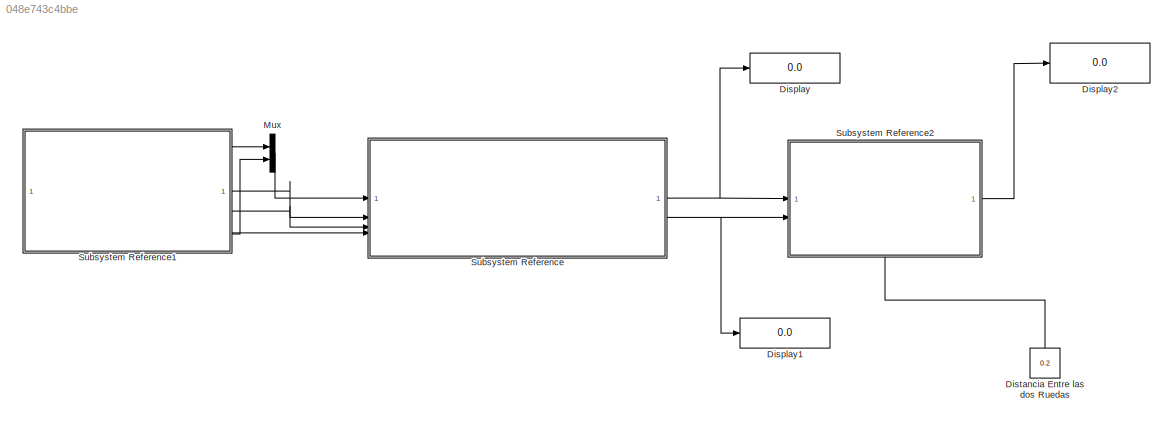
MODEL slx_048e743c4bbe
KIND model
CONFIG AbsTol = auto
CONFIG EnableMultiTasking = on
CONFIG FixedStep = 0.01
CONFIG MaxStep = auto
CONFIG MinStep = auto
CONFIG RelTol = 1e-3
CONFIG SampleTimeConstraint = Unconstrained
CONFIG SolverName = FixedStepDiscrete
CONFIG StartTime = 0.0
CONFIG StopTime = inf
BLOCK [Display] Display
  Decimation = 1
BLOCK [Display] Display1
  Decimation = 1
BLOCK [Display] Display2
  Decimation = 1
BLOCK [Constant] Distancia Entre las dos Ruedas
  NameLocation = right
  Value = 0.2
BLOCK [Mux] Mux
  DisplayOption = bar
  Inputs = 2
BLOCK [SubSystem] Subsystem Reference
  ReferencedSubsystem = Sistema_Anticolision
BLOCK [SubSystem] Subsystem Reference1
  PortSchema = {"entries":[{"content":{"sides":[{"content":{"connectorIds":["Out7","Out4","Out8"]},"type":"ConnectorPlacement.EquallySpacedRectSide","uuid":"e546e10f-6993-4aa1-adbd-c05ce222087d"},{"content":{"connectorIds":["Out5","Out6","Out1","Out2","Out3"],"side":"RIGHT"},"type":"ConnectorPlacement.EquallySpacedRectSide","uuid":"c6902324-8bb8-49b8-9b1e-f6c09f9f2113"},{"content":{"side":"TOP"},"type":"Connecto...<+265ch>
  ReferencedSubsystem = Bluetooth_Total
BLOCK [SubSystem] Subsystem Reference2
  PortSchema = {"entries":[{"content":{"sides":[{"content":{"connectorIds":["In1","In2"]},"type":"ConnectorPlacement.EquallySpacedRectSide","uuid":"296ec3ce-a2cd-47ea-b6d2-93e60c3d408c"},{"content":{"connectorIds":["Out1"],"side":"RIGHT"},"type":"ConnectorPlacement.EquallySpacedRectSide","uuid":"4b69a479-ec69-4494-a3b5-f93cec5223a5"},{"content":{"side":"TOP"},"type":"ConnectorPlacement.EquallySpacedRectSide","uu...<+377ch>
  ReferencedSubsystem = Control_Velocidad
LINE Distancia Entre las dos Ruedas:1 -> Subsystem Reference2:3
LINE Mux:1 -> Subsystem Reference:1
LINE Subsystem Reference1:1 -> Subsystem Reference:2
LINE Subsystem Reference1:2 -> Subsystem Reference:3
LINE Subsystem Reference1:3 -> Subsystem Reference:4
LINE Subsystem Reference1:5 -> Mux:1
LINE Subsystem Reference1:6 -> Mux:2
LINE Subsystem Reference2:1 -> Display2:1
NET Subsystem Reference:1 -> Display:1, Subsystem Reference2:1
NET Subsystem Reference:2 -> Display1:1, Subsystem Reference2:2
note: NET lines group one-source signal fan-out (src -> all destinations, sorted); 1:1 wires keep LINE
